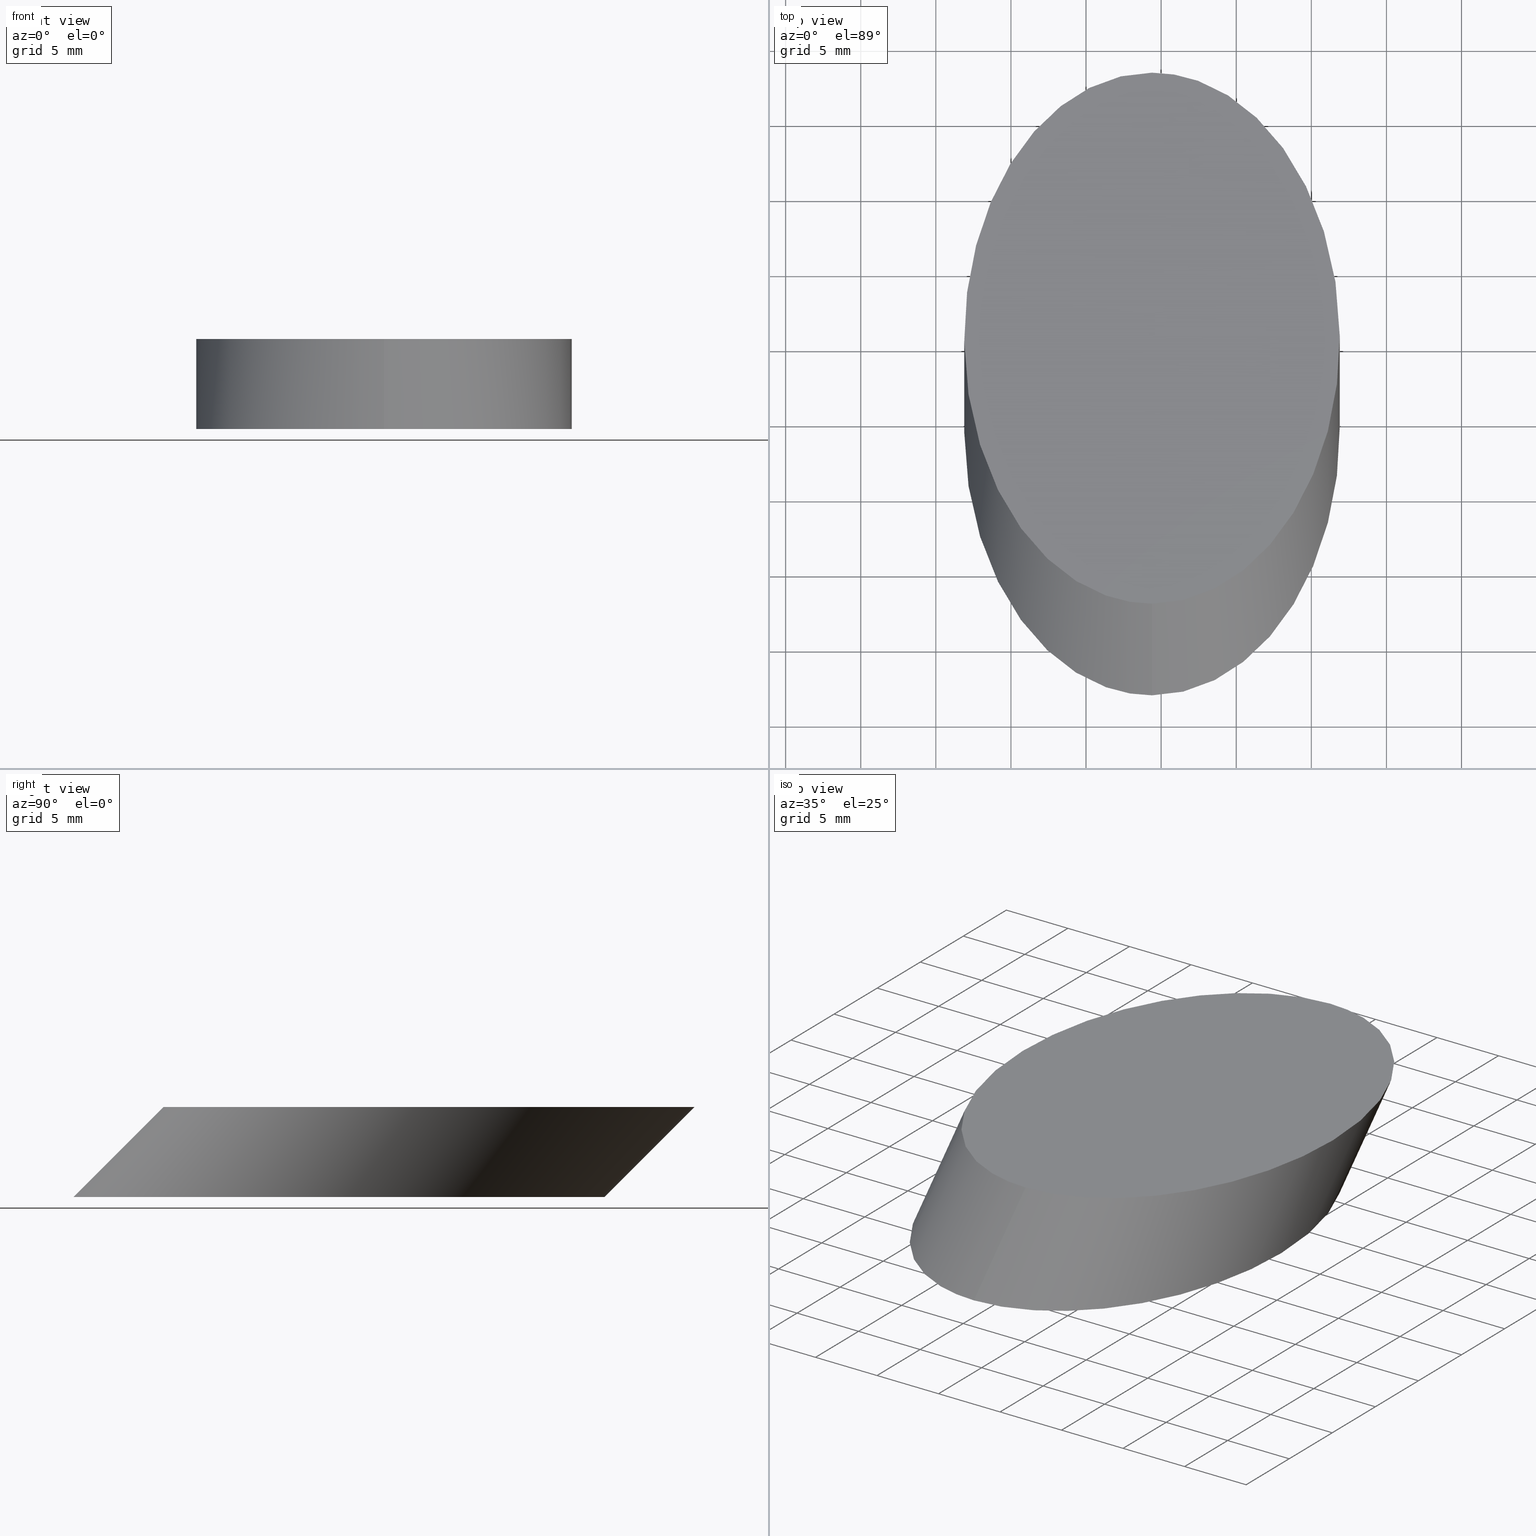
[diagram: canonical four-view strip — front | top / right | iso, engineering-drawing reading convention]
A machine part, canonical four-view strip (front | top / right | iso — engineering-drawing reading convention). The complete STEP part file that produces these views, byte-faithful:
ISO-10303-21;
HEADER;
FILE_DESCRIPTION (( 'STEP AP214' ),
    '1' );
FILE_NAME ('290001.STEP',
    '2019-08-12T02:02:40',
    ( '' ),
    ( '' ),
    'SwSTEP 2.0',
    'SolidWorks 2016',
    '' );
FILE_SCHEMA (( 'AUTOMOTIVE_DESIGN' ));
ENDSEC;

DATA;
#1 = UNCERTAINTY_MEASURE_WITH_UNIT (LENGTH_MEASURE( 1.000000000000000100E-005 ), #126, 'distance_accuracy_value', 'NONE');
#2 = COLOUR_RGB ( '',1.000000000000000000, 1.000000000000000000, 1.000000000000000000 ) ;
#3 = CARTESIAN_POINT ( 'NONE',  ( 54.39238298171605400, 18.10887153032210500, -1.734723475976807100E-015 ) ) ;
#4 = ORIENTED_EDGE ( 'NONE', *, *, #108, .F. ) ;
#5 = CARTESIAN_POINT ( 'NONE',  ( 54.39238298171605400, 47.46885835991988500, -6.000013170402204400 ) ) ;
#6 = EDGE_LOOP ( 'NONE', ( #93, #42 ) ) ;
#7 = SURFACE_STYLE_FILL_AREA ( #86 ) ;
#8 =( LENGTH_UNIT ( ) NAMED_UNIT ( * ) SI_UNIT ( .MILLI., .METRE. ) );
#9 = ADVANCED_FACE ( 'NONE', ( #109 ), #72, .T. ) ;
#10 = UNCERTAINTY_MEASURE_WITH_UNIT (LENGTH_MEASURE( 1.000000000000000100E-005 ), #61, 'distance_accuracy_value', 'NONE');
#11 =( NAMED_UNIT ( * ) SI_UNIT ( $, .STERADIAN. ) SOLID_ANGLE_UNIT ( ) );
#12 = SURFACE_STYLE_USAGE ( .BOTH. , #13 ) ;
#13 = SURFACE_SIDE_STYLE ('',( #7 ) ) ;
#14 = SHAPE_DEFINITION_REPRESENTATION ( #60, #118 ) ;
#15 = MANIFOLD_SOLID_BREP ( '͹̨-����2', #112 ) ;
#16 = CARTESIAN_POINT ( 'NONE',  ( 54.39238298171605400, 18.10887153032210500, -2.602085213965210600E-015 ) ) ;
#17 = UNCERTAINTY_MEASURE_WITH_UNIT (LENGTH_MEASURE( 1.000000000000000100E-005 ), #8, 'distance_accuracy_value', 'NONE');
#18 = LINE ( 'NONE', #80, #77 ) ;
#19 = EDGE_CURVE ( 'NONE', #119, #59, #96, .T. ) ;
#20 = CARTESIAN_POINT ( 'NONE',  ( 54.39238298171605400, 12.10885835991988600, -6.000013170402204400 ) ) ;
#21 = PRESENTATION_LAYER_ASSIGNMENT (  '', '', ( #76 ) ) ;
#22 = ORIENTED_EDGE ( 'NONE', *, *, #114, .T. ) ;
#23 = PRODUCT_CONTEXT ( 'NONE', #90, 'mechanical' ) ;
#24 =( NAMED_UNIT ( * ) PLANE_ANGLE_UNIT ( ) SI_UNIT ( $, .RADIAN. ) );
#25 = FACE_OUTER_BOUND ( 'NONE', #6, .T. ) ;
#26 = PRODUCT_DEFINITION_FORMATION_WITH_SPECIFIED_SOURCE ( '�κ�', '', #124, .NOT_KNOWN. ) ;
#27 = AXIS2_PLACEMENT_3D ( 'NONE', #75, #39, #84 ) ;
#28 = CARTESIAN_POINT ( 'NONE',  ( 29.39238298171604700, 47.46885835991989200, -6.000013170402204400 ) ) ;
#29 = CARTESIAN_POINT ( 'NONE',  ( 29.39238298171604700, 47.46885835991989200, -6.000013170402204400 ) ) ;
#30 = COLOUR_RGB ( '',1.000000000000000000, 1.000000000000000000, 1.000000000000000000 ) ;
#31 = FACE_OUTER_BOUND ( 'NONE', #51, .T. ) ;
#32 = DIRECTION ( 'NONE',  ( 0.0000000000000000000, 0.0000000000000000000, 1.000000000000000000 ) ) ;
#33 = ADVANCED_FACE ( 'NONE', ( #62 ), #49, .T. ) ;
#34 = PRODUCT_RELATED_PRODUCT_CATEGORY ( 'part', '', ( #124 ) ) ;
#35 = ORIENTED_EDGE ( 'NONE', *, *, #19, .F. ) ;
#36 = SURFACE_SIDE_STYLE ('',( #46 ) ) ;
#37 = PRESENTATION_STYLE_ASSIGNMENT (( #12 ) ) ;
#38 = PRESENTATION_LAYER_ASSIGNMENT (  '', '', ( #54 ) ) ;
#39 = DIRECTION ( 'NONE',  ( 0.0000000000000000000, 0.0000000000000000000, 1.000000000000000000 ) ) ;
#40 = FILL_AREA_STYLE_COLOUR ( '', #2 ) ;
#41 = CARTESIAN_POINT ( 'NONE',  ( 54.39238298171605400, 12.10885835991988600, -6.000013170402204400 ) ) ;
#42 = ORIENTED_EDGE ( 'NONE', *, *, #82, .F. ) ;
#43 =( BOUNDED_CURVE ( )  B_SPLINE_CURVE ( 3, ( #145, #55, #106, #5 ),
 .UNSPECIFIED., .F., .F. ) 
 B_SPLINE_CURVE_WITH_KNOTS ( ( 4, 4 ),
 ( 0.0000000000000000000, 3.141592653589793100 ),
 .UNSPECIFIED. ) 
 CURVE ( )  GEOMETRIC_REPRESENTATION_ITEM ( )  RATIONAL_B_SPLINE_CURVE ( ( 1.000000000000000000, 0.3333333333333333700, 0.3333333333333333700, 1.000000000000000000 ) ) 
 REPRESENTATION_ITEM ( '' )  );
#44 = PLANE ( 'NONE',  #144 ) ;
#45 = APPLICATION_PROTOCOL_DEFINITION ( 'draft international standard', 'automotive_design', 1998, #57 ) ;
#46 = SURFACE_STYLE_FILL_AREA ( #68 ) ;
#47 = VECTOR ( 'NONE', #135, 1000.000000000000000 ) ;
#48 =( NAMED_UNIT ( * ) PLANE_ANGLE_UNIT ( ) SI_UNIT ( $, .RADIAN. ) );
#49 =( BOUNDED_SURFACE ( )  B_SPLINE_SURFACE ( 3, 1, ( 
 ( #50, #129 ),
 ( #28, #117 ),
 ( #97, #140 ),
 ( #71, #3 ) ),
 .UNSPECIFIED., .F., .F., .T. ) 
 B_SPLINE_SURFACE_WITH_KNOTS ( ( 4, 4 ),
 ( 2, 2 ),
 ( 0.0000000000000000000, 1.000000000000000000 ),
 ( 0.0000000000000000000, 1.000000000000000000 ),
 .UNSPECIFIED. ) 
 GEOMETRIC_REPRESENTATION_ITEM ( )  RATIONAL_B_SPLINE_SURFACE ( (
 ( 1.000000000000000000, 1.000000000000000000),
 ( 0.3333333333333333700, 0.3333333333333333700),
 ( 0.3333333333333333700, 0.3333333333333333700),
 ( 1.000000000000000000, 1.000000000000000000) ) ) 
 REPRESENTATION_ITEM ( '' )  SURFACE ( )  );
#50 = CARTESIAN_POINT ( 'NONE',  ( 54.39238298171605400, 47.46885835991988500, -6.000013170402204400 ) ) ;
#51 = EDGE_LOOP ( 'NONE', ( #22, #66, #70, #91 ) ) ;
#52 = CARTESIAN_POINT ( 'NONE',  ( 54.39238298171605400, 53.46887153032210400, -2.602085213965210600E-015 ) ) ;
#53 = FILL_AREA_STYLE_COLOUR ( '', #30 ) ;
#54 = STYLED_ITEM ( 'NONE', ( #37 ), #15 ) ;
#55 = CARTESIAN_POINT ( 'NONE',  ( 79.39238298171605400, 12.10885835991988900, -6.000013170402204400 ) ) ;
#56 = CARTESIAN_POINT ( 'NONE',  ( 54.39238298171605400, 18.10887153032210500, 0.0000000000000000000 ) ) ;
#57 = APPLICATION_CONTEXT ( 'automotive_design' ) ;
#58 = VERTEX_POINT ( 'NONE', #74 ) ;
#59 = VERTEX_POINT ( 'NONE', #85 ) ;
#60 = PRODUCT_DEFINITION_SHAPE ( 'NONE', 'NONE',  #122 ) ;
#61 =( LENGTH_UNIT ( ) NAMED_UNIT ( * ) SI_UNIT ( .MILLI., .METRE. ) );
#62 = FACE_OUTER_BOUND ( 'NONE', #115, .T. ) ;
#63 = CARTESIAN_POINT ( 'NONE',  ( 54.39238298171605400, 47.46885835991988500, -6.000013170402204400 ) ) ;
#64 = MECHANICAL_DESIGN_GEOMETRIC_PRESENTATION_REPRESENTATION (  '', ( #76 ), #104 ) ;
#65 =( BOUNDED_CURVE ( )  B_SPLINE_CURVE ( 3, ( #116, #29, #143, #41 ),
 .UNSPECIFIED., .F., .T. ) 
 B_SPLINE_CURVE_WITH_KNOTS ( ( 4, 4 ),
 ( 3.141592653589793100, 6.283185307179586200 ),
 .UNSPECIFIED. ) 
 CURVE ( )  GEOMETRIC_REPRESENTATION_ITEM ( )  RATIONAL_B_SPLINE_CURVE ( ( 1.000000000000000000, 0.3333333333333333700, 0.3333333333333333700, 1.000000000000000000 ) ) 
 REPRESENTATION_ITEM ( '' )  );
#66 = ORIENTED_EDGE ( 'NONE', *, *, #108, .T. ) ;
#67 = ORIENTED_EDGE ( 'NONE', *, *, #82, .T. ) ;
#68 = FILL_AREA_STYLE ('',( #53 ) ) ;
#69 =( BOUNDED_SURFACE ( )  B_SPLINE_SURFACE ( 3, 1, ( 
 ( #141, #16 ),
 ( #87, #132 ),
 ( #120, #130 ),
 ( #63, #52 ) ),
 .UNSPECIFIED., .F., .F., .F. ) 
 B_SPLINE_SURFACE_WITH_KNOTS ( ( 4, 4 ),
 ( 2, 2 ),
 ( 0.0000000000000000000, 1.000000000000000000 ),
 ( 0.0000000000000000000, 1.000000000000000000 ),
 .UNSPECIFIED. ) 
 GEOMETRIC_REPRESENTATION_ITEM ( )  RATIONAL_B_SPLINE_SURFACE ( (
 ( 1.000000000000000000, 1.000000000000000000),
 ( 0.3333333333333333700, 0.3333333333333333700),
 ( 0.3333333333333333700, 0.3333333333333333700),
 ( 1.000000000000000000, 1.000000000000000000) ) ) 
 REPRESENTATION_ITEM ( '' )  SURFACE ( )  );
#70 = ORIENTED_EDGE ( 'NONE', *, *, #88, .F. ) ;
#71 = CARTESIAN_POINT ( 'NONE',  ( 54.39238298171605400, 12.10885835991988600, -6.000013170402204400 ) ) ;
#72 = PLANE ( 'NONE',  #27 ) ;
#73 = PRODUCT_DEFINITION_CONTEXT ( 'detailed design', #57, 'design' ) ;
#74 = CARTESIAN_POINT ( 'NONE',  ( 54.39238298171605400, 47.46885835991988500, -6.000013170402204400 ) ) ;
#75 = CARTESIAN_POINT ( 'NONE',  ( 54.39238298171605400, 35.78887153032210500, 0.0000000000000000000 ) ) ;
#76 = STYLED_ITEM ( 'NONE', ( #103 ), #118 ) ;
#77 = VECTOR ( 'NONE', #142, 1000.000000000000000 ) ;
#78 = MECHANICAL_DESIGN_GEOMETRIC_PRESENTATION_REPRESENTATION (  '', ( #54 ), #133 ) ;
#79 = ADVANCED_FACE ( 'NONE', ( #31 ), #69, .T. ) ;
#80 = CARTESIAN_POINT ( 'NONE',  ( 54.39238298171605400, 47.46885835991988500, -6.000013170402204400 ) ) ;
#81 = LINE ( 'NONE', #20, #47 ) ;
#82 = EDGE_CURVE ( 'NONE', #58, #99, #65, .T. ) ;
#83 = AXIS2_PLACEMENT_3D ( 'NONE', #107, #102, #111 ) ;
#84 = DIRECTION ( 'NONE',  ( 1.000000000000000000, 0.0000000000000000000, -0.0000000000000000000 ) ) ;
#85 = CARTESIAN_POINT ( 'NONE',  ( 54.39238298171605400, 18.10887153032210500, 0.0000000000000000000 ) ) ;
#86 = FILL_AREA_STYLE ('',( #40 ) ) ;
#87 = CARTESIAN_POINT ( 'NONE',  ( 79.39238298171605400, 12.10885835991988600, -6.000013170402204400 ) ) ;
#88 = EDGE_CURVE ( 'NONE', #59, #119, #92, .T. ) ;
#89 = CARTESIAN_POINT ( 'NONE',  ( 79.39238298171605400, 53.46887153032210400, 0.0000000000000000000 ) ) ;
#90 = APPLICATION_CONTEXT ( 'automotive_design' ) ;
#91 = ORIENTED_EDGE ( 'NONE', *, *, #101, .F. ) ;
#92 =( BOUNDED_CURVE ( )  B_SPLINE_CURVE ( 3, ( #56, #134, #89, #137 ),
 .UNSPECIFIED., .F., .T. ) 
 B_SPLINE_CURVE_WITH_KNOTS ( ( 4, 4 ),
 ( 0.0000000000000000000, 3.141592653589793100 ),
 .UNSPECIFIED. ) 
 CURVE ( )  GEOMETRIC_REPRESENTATION_ITEM ( )  RATIONAL_B_SPLINE_CURVE ( ( 1.000000000000000000, 0.3333333333333333700, 0.3333333333333333700, 1.000000000000000000 ) ) 
 REPRESENTATION_ITEM ( '' )  );
#93 = ORIENTED_EDGE ( 'NONE', *, *, #114, .F. ) ;
#94 = CARTESIAN_POINT ( 'NONE',  ( 54.39238298171605400, 18.10887153032210500, 0.0000000000000000000 ) ) ;
#95 = CARTESIAN_POINT ( 'NONE',  ( 54.39238298171605400, 53.46887153032210400, 0.0000000000000000000 ) ) ;
#96 =( BOUNDED_CURVE ( )  B_SPLINE_CURVE ( 3, ( #95, #128, #105, #94 ),
 .UNSPECIFIED., .F., .F. ) 
 B_SPLINE_CURVE_WITH_KNOTS ( ( 4, 4 ),
 ( 3.141592653589793100, 6.283185307179586200 ),
 .UNSPECIFIED. ) 
 CURVE ( )  GEOMETRIC_REPRESENTATION_ITEM ( )  RATIONAL_B_SPLINE_CURVE ( ( 1.000000000000000000, 0.3333333333333333700, 0.3333333333333333700, 1.000000000000000000 ) ) 
 REPRESENTATION_ITEM ( '' )  );
#97 = CARTESIAN_POINT ( 'NONE',  ( 29.39238298171604700, 12.10885835991988600, -6.000013170402204400 ) ) ;
#98 =( NAMED_UNIT ( * ) SI_UNIT ( $, .STERADIAN. ) SOLID_ANGLE_UNIT ( ) );
#99 = VERTEX_POINT ( 'NONE', #131 ) ;
#100 =( NAMED_UNIT ( * ) PLANE_ANGLE_UNIT ( ) SI_UNIT ( $, .RADIAN. ) );
#101 = EDGE_CURVE ( 'NONE', #99, #59, #81, .T. ) ;
#102 = DIRECTION ( 'NONE',  ( 0.0000000000000000000, 0.0000000000000000000, 1.000000000000000000 ) ) ;
#103 = PRESENTATION_STYLE_ASSIGNMENT (( #148 ) ) ;
#104 =( GEOMETRIC_REPRESENTATION_CONTEXT ( 3 ) GLOBAL_UNCERTAINTY_ASSIGNED_CONTEXT ( ( #1 ) ) GLOBAL_UNIT_ASSIGNED_CONTEXT ( ( #126, #24, #139 ) ) REPRESENTATION_CONTEXT ( 'NONE', 'WORKASPACE' ) );
#105 = CARTESIAN_POINT ( 'NONE',  ( 29.39238298171604700, 18.10887153032210200, 0.0000000000000000000 ) ) ;
#106 = CARTESIAN_POINT ( 'NONE',  ( 79.39238298171605400, 47.46885835991987800, -6.000013170402204400 ) ) ;
#107 = CARTESIAN_POINT ( 'NONE',  ( 0.0000000000000000000, 0.0000000000000000000, 0.0000000000000000000 ) ) ;
#108 = EDGE_CURVE ( 'NONE', #58, #119, #18, .T. ) ;
#109 = FACE_OUTER_BOUND ( 'NONE', #136, .T. ) ;
#110 = ADVANCED_FACE ( 'NONE', ( #25 ), #44, .F. ) ;
#111 = DIRECTION ( 'NONE',  ( 1.000000000000000000, 0.0000000000000000000, 0.0000000000000000000 ) ) ;
#112 = CLOSED_SHELL ( 'NONE', ( #79, #33, #110, #9 ) ) ;
#113 = APPLICATION_PROTOCOL_DEFINITION ( 'draft international standard', 'automotive_design', 1998, #90 ) ;
#114 = EDGE_CURVE ( 'NONE', #99, #58, #43, .T. ) ;
#115 = EDGE_LOOP ( 'NONE', ( #4, #67, #125, #35 ) ) ;
#116 = CARTESIAN_POINT ( 'NONE',  ( 54.39238298171605400, 47.46885835991988500, -6.000013170402204400 ) ) ;
#117 = CARTESIAN_POINT ( 'NONE',  ( 29.39238298171604700, 53.46887153032211200, -1.301042606982605100E-015 ) ) ;
#118 = ADVANCED_BREP_SHAPE_REPRESENTATION ( '290001', ( #15, #83 ), #138 ) ;
#119 = VERTEX_POINT ( 'NONE', #146 ) ;
#120 = CARTESIAN_POINT ( 'NONE',  ( 79.39238298171605400, 47.46885835991988500, -6.000013170402204400 ) ) ;
#121 = DIRECTION ( 'NONE',  ( 1.000000000000000000, 0.0000000000000000000, -0.0000000000000000000 ) ) ;
#122 = PRODUCT_DEFINITION ( 'δ֪', '', #26, #73 ) ;
#123 = CARTESIAN_POINT ( 'NONE',  ( 54.39238298171605400, 29.78885835991988500, -6.000013170402204400 ) ) ;
#124 = PRODUCT ( '290001', '290001', '', ( #23 ) ) ;
#125 = ORIENTED_EDGE ( 'NONE', *, *, #101, .T. ) ;
#126 =( LENGTH_UNIT ( ) NAMED_UNIT ( * ) SI_UNIT ( .MILLI., .METRE. ) );
#127 = ORIENTED_EDGE ( 'NONE', *, *, #19, .T. ) ;
#128 = CARTESIAN_POINT ( 'NONE',  ( 29.39238298171604700, 53.46887153032211200, 0.0000000000000000000 ) ) ;
#129 = CARTESIAN_POINT ( 'NONE',  ( 54.39238298171605400, 53.46887153032210400, -1.734723475976807100E-015 ) ) ;
#130 = CARTESIAN_POINT ( 'NONE',  ( 79.39238298171605400, 53.46887153032210400, -2.602085213965210200E-015 ) ) ;
#131 = CARTESIAN_POINT ( 'NONE',  ( 54.39238298171605400, 12.10885835991988600, -6.000013170402204400 ) ) ;
#132 = CARTESIAN_POINT ( 'NONE',  ( 79.39238298171605400, 18.10887153032210200, -2.602085213965210200E-015 ) ) ;
#133 =( GEOMETRIC_REPRESENTATION_CONTEXT ( 3 ) GLOBAL_UNCERTAINTY_ASSIGNED_CONTEXT ( ( #10 ) ) GLOBAL_UNIT_ASSIGNED_CONTEXT ( ( #61, #48, #11 ) ) REPRESENTATION_CONTEXT ( 'NONE', 'WORKASPACE' ) );
#134 = CARTESIAN_POINT ( 'NONE',  ( 79.39238298171605400, 18.10887153032210200, 0.0000000000000000000 ) ) ;
#135 = DIRECTION ( 'NONE',  ( 0.0000000000000000000, 0.7071067811865484600, 0.7071067811865465700 ) ) ;
#136 = EDGE_LOOP ( 'NONE', ( #147, #127 ) ) ;
#137 = CARTESIAN_POINT ( 'NONE',  ( 54.39238298171605400, 53.46887153032210400, 0.0000000000000000000 ) ) ;
#138 =( GEOMETRIC_REPRESENTATION_CONTEXT ( 3 ) GLOBAL_UNCERTAINTY_ASSIGNED_CONTEXT ( ( #17 ) ) GLOBAL_UNIT_ASSIGNED_CONTEXT ( ( #8, #100, #98 ) ) REPRESENTATION_CONTEXT ( 'NONE', 'WORKASPACE' ) );
#139 =( NAMED_UNIT ( * ) SI_UNIT ( $, .STERADIAN. ) SOLID_ANGLE_UNIT ( ) );
#140 = CARTESIAN_POINT ( 'NONE',  ( 29.39238298171604700, 18.10887153032210200, -1.301042606982605100E-015 ) ) ;
#141 = CARTESIAN_POINT ( 'NONE',  ( 54.39238298171605400, 12.10885835991988600, -6.000013170402204400 ) ) ;
#142 = DIRECTION ( 'NONE',  ( 0.0000000000000000000, 0.7071067811865484600, 0.7071067811865465700 ) ) ;
#143 = CARTESIAN_POINT ( 'NONE',  ( 29.39238298171604700, 12.10885835991988900, -6.000013170402204400 ) ) ;
#144 = AXIS2_PLACEMENT_3D ( 'NONE', #123, #32, #121 ) ;
#145 = CARTESIAN_POINT ( 'NONE',  ( 54.39238298171605400, 12.10885835991988600, -6.000013170402204400 ) ) ;
#146 = CARTESIAN_POINT ( 'NONE',  ( 54.39238298171605400, 53.46887153032210400, 0.0000000000000000000 ) ) ;
#147 = ORIENTED_EDGE ( 'NONE', *, *, #88, .T. ) ;
#148 = SURFACE_STYLE_USAGE ( .BOTH. , #36 ) ;
ENDSEC;
END-ISO-10303-21;
